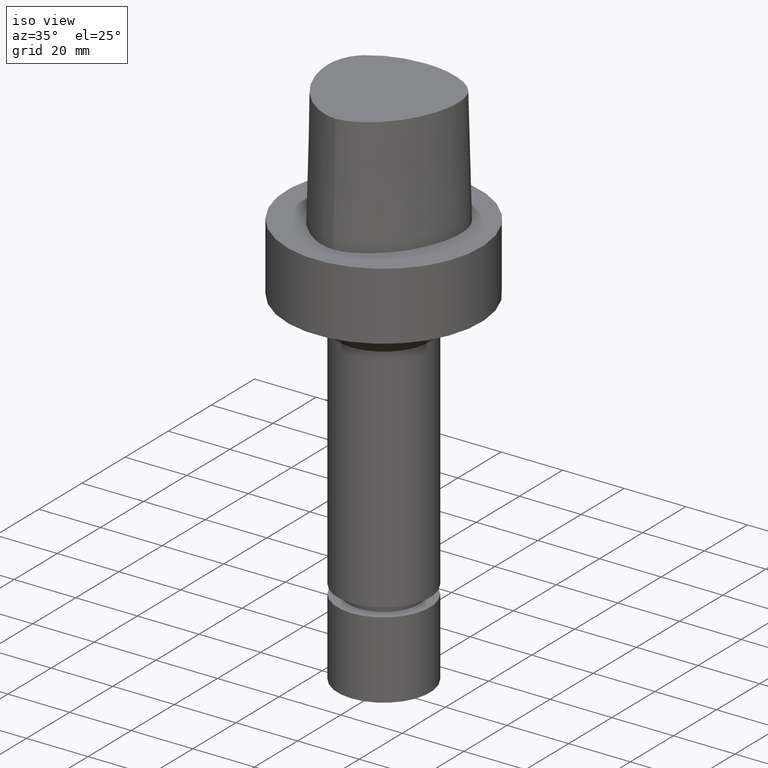
[diagram: clean part render]
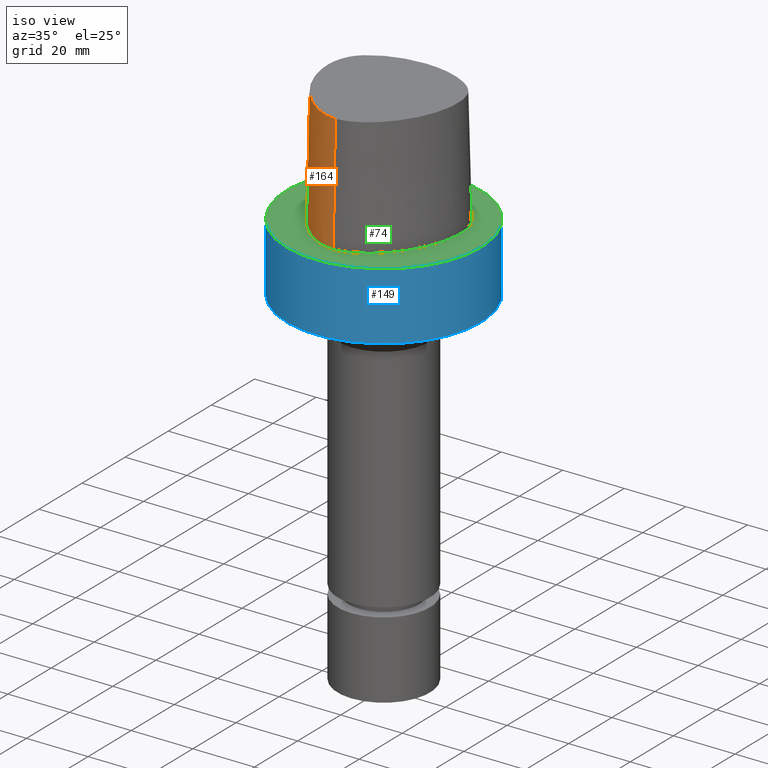
[diagram: same view with three faces highlighted in distinct colors, each labeled with its STEP entity id]
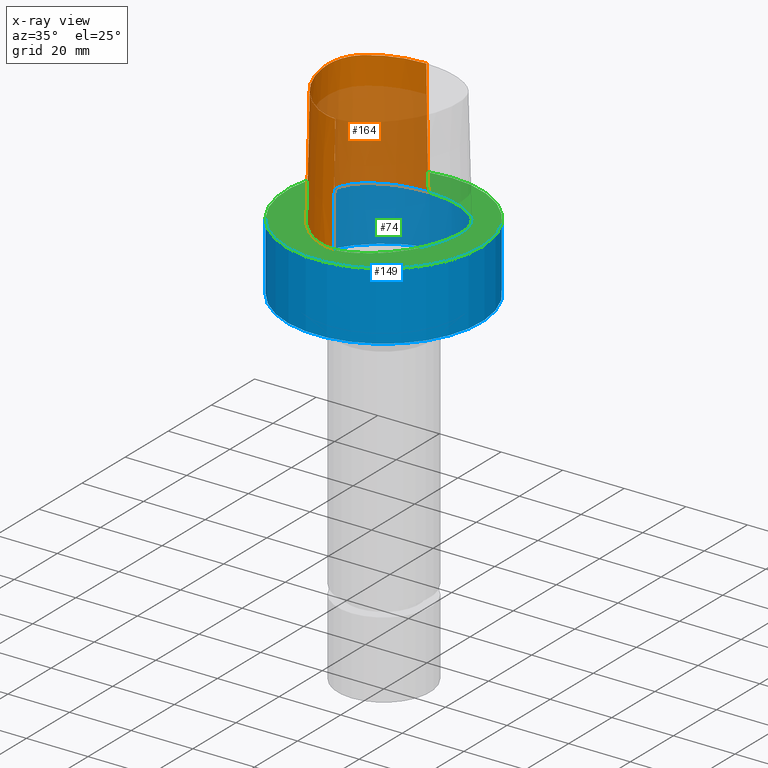
[diagram: x-ray of the same camera — body ghosted, the three highlighted faces saturated]
A machine part, iso view with three faces highlighted in distinct colors.
The next image is the same camera in x-ray (body ghosted, the three faces saturated) — at least one of them is partly hidden behind the body in this view.
Their STEP definitions:

[orange] entity #164 — the highlighted face is a freeform B-spline surface patch.
#109=EDGE_CURVE('Unnamed[1]',#223,#239,#248,.T.);
#146=EDGE_CURVE('Unnamed[1]',#239,#299,#300,.T.);
#153=EDGE_CURVE('Unnamed[1]',#299,#307,#310,.T.);
#164=ADVANCED_FACE('Unnamed[1]',(#325),#326,.T.);
#171=EDGE_CURVE('Unnamed[1]',#223,#307,#336,.T.);
#223=VERTEX_POINT('',#388);
#239=VERTEX_POINT('',#476);
#248=B_SPLINE_CURVE_WITH_KNOTS('',3,(#503,#504,#505,#506,#507,#508,#509,#510,#511,#512,#513,#514,#515,#516,#517,#518),.UNSPECIFIED.,.F.,.F.,(4,1,1,1,1,1,1,1,1,1,1,1,1,4),(0.0,0.447924670568964,0.9388024242536,1.50591409090711,2.07314340012323,2.72424957442464,3.2253501842849,3.80982102049476,4.34867996267067,4.85900173381144,5.37972031856977,6.03459825488646,6.61113557741484,6.61513393087395),.UNSPECIFIED.);
#299=VERTEX_POINT('',#582);
#300=LINE('',#583,#584);
#307=VERTEX_POINT('',#593);
#310=B_SPLINE_CURVE_WITH_KNOTS('',3,(#597,#598,#599,#600,#601,#602,#603,#604,#605,#606,#607,#608,#609,#610,#611,#612,#613,#614),.UNSPECIFIED.,.F.,.F.,(4,1,1,1,1,1,1,1,1,2,1,1,1,1,4),(-6.6151339308743,-6.20168806019465,-5.78824218951501,-5.37479631883537,-4.96135044815572,-4.13445870679644,-3.30756696543715,-2.89412109475751,-2.48067522407786,-2.06722935339822,-1.65378348271857,-1.24033761203893,-0.826891741359287,-0.413445870679644,0.0),.UNSPECIFIED.);
#325=FACE_OUTER_BOUND('',#649,.T.);
#326=B_SPLINE_SURFACE_WITH_KNOTS('',3,3,((#650,#651,#652,#653),(#654,#655,#656,#657),(#658,#659,#660,#661),(#662,#663,#664,#665),(#666,#667,#668,#669),(#670,#671,#672,#673),(#674,#675,#676,#677),(#678,#679,#680,#681),(#682,#683,#684,#685),(#686,#687,#688,#689),(#690,#691,#692,#693),(#694,#695,#696,#697),(#698,#699,#700,#701),(#702,#703,#704,#705),(#706,#707,#708,#709),(#710,#711,#712,#713),(#714,#715,#716,#717),(#718,#719,#720,#721)),.UNSPECIFIED.,.F.,.F.,.F.,(4,1,1,1,1,1,1,1,1,2,1,1,1,1,4),(4,4),(-6.6151339308743,-6.20168806019465,-5.78824218951501,-5.37479631883537,-4.96135044815572,-4.13445870679644,-3.30756696543715,-2.89412109475751,-2.48067522407786,-2.06722935339822,-1.65378348271857,-1.24033761203893,-0.826891741359287,-0.413445870679644,0.0),(-3.8,0.0),.UNSPECIFIED.);
#336=LINE('',#734,#735);
#388=CARTESIAN_POINT('',(-0.001218547003662,19.7276821925089,38.0));
#476=CARTESIAN_POINT('',(0.038736923393866,-22.5191997536361,38.0));
#503=CARTESIAN_POINT('',(-0.001218547003662,19.7276821925089,38.0));
#504=CARTESIAN_POINT('',(-1.49408492138443,19.6585333605309,38.0));
#505=CARTESIAN_POINT('',(-4.62297391420352,19.513604770166,38.0));
#506=CARTESIAN_POINT('',(-9.56160616752212,18.4291575730197,38.0));
#507=CARTESIAN_POINT('',(-14.5427684976927,16.2697452580488,38.0));
#508=CARTESIAN_POINT('',(-19.4315563551602,12.5302108980807,38.0));
#509=CARTESIAN_POINT('',(-21.306358833612,6.76352894547076,38.0));
#510=CARTESIAN_POINT('',(-21.0724946936277,0.957075236984038,38.0));
#511=CARTESIAN_POINT('',(-19.7876470880144,-4.34628503581652,38.0));
#512=CARTESIAN_POINT('',(-17.5396999600095,-9.33314444653089,38.0));
#513=CARTESIAN_POINT('',(-14.645447733857,-13.7185760345629,38.0));
#514=CARTESIAN_POINT('',(-10.7996726536643,-17.856257282137,38.0));
#515=CARTESIAN_POINT('',(-6.00479510196376,-21.2687382067675,38.0));
#516=CARTESIAN_POINT('',(-1.90747171908525,-22.5250621415864,38.0));
#517=CARTESIAN_POINT('',(0.025424107066464,-22.5192678176378,38.0));
#518=CARTESIAN_POINT('',(0.038736923394311,-22.519199753636,38.0));
#582=CARTESIAN_POINT('',(0.04359356758149,-23.4691235068931,7.78075697532443E-032));
#583=CARTESIAN_POINT('',(0.038736923393866,-22.5191997536361,38.0));
#584=VECTOR('',#850,38.0118715498723);
#593=CARTESIAN_POINT('',(-0.045171994691285,20.6766009553285,1.6755590516169E-031));
#597=CARTESIAN_POINT('',(0.04359356758149,-23.4691235068931,7.78075697532443E-032));
#598=CARTESIAN_POINT('',(-1.4714994713963,-23.4767895315797,2.46519032881566E-032));
#599=CARTESIAN_POINT('',(-4.43923476371401,-22.821149804767,-4.93038065763132E-032));
#600=CARTESIAN_POINT('',(-8.35043230079961,-20.8000751253325,-9.86076131526265E-032));
#601=CARTESIAN_POINT('',(-11.744900222602,-18.1556117874078,-1.97215226305253E-031));
#602=CARTESIAN_POINT('',(-15.6989602501314,-14.0406306929147,-1.97215226305253E-031));
#603=CARTESIAN_POINT('',(-19.5352875070682,-8.00624990770787,1.97215226305253E-031));
#604=CARTESIAN_POINT('',(-21.7205626190491,-1.16081708945282,0.0));
#605=CARTESIAN_POINT('',(-22.2486616783342,4.54965558738736,0.0));
#606=CARTESIAN_POINT('',(-21.6646421256468,9.00229539124618,0.0));
#607=CARTESIAN_POINT('',(-20.3945635471922,11.7780544971003,0.0));
#608=CARTESIAN_POINT('',(-18.5925528034471,14.1980602922581,0.0));
#609=CARTESIAN_POINT('',(-16.3226584122258,16.1777748720707,0.0));
#610=CARTESIAN_POINT('',(-12.5076407874579,18.2524201541303,9.86076131526265E-032));
#611=CARTESIAN_POINT('',(-8.46776192107786,19.679114377952,9.86076131526265E-032));
#612=CARTESIAN_POINT('',(-4.23043497193604,20.487781597334,1.97215226305253E-031));
#613=CARTESIAN_POINT('',(-1.42313094248379,20.6127745766442,1.10933564796705E-031));
#614=CARTESIAN_POINT('',(-0.045171994691285,20.6766009553285,1.6755590516169E-031));
#649=EDGE_LOOP('',(#873,#874,#875,#876));
#650=CARTESIAN_POINT('',(0.038736923393866,-22.5191997536361,38.0));
#651=CARTESIAN_POINT('',(0.04035580478973,-22.8358410047159,25.3333333333066));
#652=CARTESIAN_POINT('',(0.041974686185626,-23.1524822558133,12.6666666666934));
#653=CARTESIAN_POINT('',(0.04359356758149,-23.4691235068931,7.78075697532443E-032));
#654=CARTESIAN_POINT('',(-1.33786123484754,-22.5261650259856,38.0));
#655=CARTESIAN_POINT('',(-1.38240731367927,-22.8430399310626,25.3333333333066));
#656=CARTESIAN_POINT('',(-1.42695339249092,-23.1599147815484,12.6666666666934));
#657=CARTESIAN_POINT('',(-1.4714994713963,-23.4767895315797,2.46519032881566E-032));
#658=CARTESIAN_POINT('',(-4.08909358431842,-21.9268839879558,38.0));
#659=CARTESIAN_POINT('',(-4.20580731135515,-22.2249725500078,25.3333333333066));
#660=CARTESIAN_POINT('',(-4.32252104640446,-22.5230611651922,12.6666666666934));
#661=CARTESIAN_POINT('',(-4.43923476371401,-22.821149804767,-4.93038065763132E-032));
#662=CARTESIAN_POINT('',(-7.8333083619947,-19.9973514861616,38.0));
#663=CARTESIAN_POINT('',(-8.00568301809614,-20.2649260859405,25.3333333333066));
#664=CARTESIAN_POINT('',(-8.1780576640789,-20.532500564315,12.6666666666934));
#665=CARTESIAN_POINT('',(-8.35043230079961,-20.8000751253325,-9.86076131526265E-032));
#666=CARTESIAN_POINT('',(-11.1035071147626,-17.450554957873,38.0));
#667=CARTESIAN_POINT('',(-11.3173048160562,-17.6855739222454,25.3333333333066));
#668=CARTESIAN_POINT('',(-11.5311025116181,-17.9205928617968,12.6666666666934));
#669=CARTESIAN_POINT('',(-11.744900222602,-18.1556117874078,-1.97215226305253E-031));
#670=CARTESIAN_POINT('',(-14.9379535189057,-13.461132049697,38.0));
#671=CARTESIAN_POINT('',(-15.191622410671,-13.6542981711372,25.3333333333066));
#672=CARTESIAN_POINT('',(-15.4452913389853,-13.8474645327131,12.6666666666934));
#673=CARTESIAN_POINT('',(-15.6989602501314,-14.0406306929147,-1.97215226305253E-031));
#674=CARTESIAN_POINT('',(-18.6681263017223,-7.59391757463204,38.0));
#675=CARTESIAN_POINT('',(-18.9571800800711,-7.73136168081928,25.3333333333066));
#676=CARTESIAN_POINT('',(-19.2462337287194,-7.86880572399774,12.6666666666934));
#677=CARTESIAN_POINT('',(-19.5352875070682,-8.00624990770787,1.97215226305253E-031));
#678=CARTESIAN_POINT('',(-20.7857899858339,-0.952862819790525,38.0));
#679=CARTESIAN_POINT('',(-21.0973808305434,-1.02218087467418,25.3333333333066));
#680=CARTESIAN_POINT('',(-21.408971677436,-1.09149899580772,12.6666666666934));
#681=CARTESIAN_POINT('',(-21.7205626190491,-1.16081708945282,0.0));
#682=CARTESIAN_POINT('',(-21.2911760556836,4.5469215763113,38.0));
#683=CARTESIAN_POINT('',(-21.610337904926,4.54783292082248,25.3333333333066));
#684=CARTESIAN_POINT('',(-21.9294998290918,4.54874426225691,12.6666666666934));
#685=CARTESIAN_POINT('',(-22.2486616783342,4.54965558738736,0.0));
#686=CARTESIAN_POINT('',(-20.7345309521958,8.74909381391006,38.0));
#687=CARTESIAN_POINT('',(-21.0445680426217,8.83349432450556,25.3333333333066));
#688=CARTESIAN_POINT('',(-21.3546050933631,8.91789488065068,12.6666666666934));
#689=CARTESIAN_POINT('',(-21.6646421256468,9.00229539124618,0.0));
#690=CARTESIAN_POINT('',(-19.5531512296439,11.3174844040833,38.0));
#691=CARTESIAN_POINT('',(-19.8336219699984,11.4710077674213,25.3333333333066));
#692=CARTESIAN_POINT('',(-20.1140927680763,11.6245311337623,12.6666666666934));
#693=CARTESIAN_POINT('',(-20.3945635471922,11.7780544971003,0.0));
#694=CARTESIAN_POINT('',(-17.9100913688793,13.524027510437,38.0));
#695=CARTESIAN_POINT('',(-18.1375785458768,13.7487051053655,25.3333333333066));
#696=CARTESIAN_POINT('',(-18.365065665211,13.9733826973296,12.6666666666934));
#697=CARTESIAN_POINT('',(-18.5925528034471,14.1980602922581,0.0));
#698=CARTESIAN_POINT('',(-15.7996349656398,15.3762170634413,38.0));
#699=CARTESIAN_POINT('',(-15.9739761051783,15.6434029846179,25.3333333333066));
#700=CARTESIAN_POINT('',(-16.1483172726872,15.9105889315134,12.6666666666934));
#701=CARTESIAN_POINT('',(-16.3226584122258,16.1777748720707,0.0));
#702=CARTESIAN_POINT('',(-12.1175640002064,17.3825162484012,38.0));
#703=CARTESIAN_POINT('',(-12.2475895903055,17.6724842099619,25.3333333333066));
#704=CARTESIAN_POINT('',(-12.3776152070492,17.9624521925696,12.6666666666934));
#705=CARTESIAN_POINT('',(-12.5076407874579,18.2524201541303,9.86076131526265E-032));
#706=CARTESIAN_POINT('',(-8.21761151654222,18.7588585989994,38.0));
#707=CARTESIAN_POINT('',(-8.30099497910627,19.0656105427881,25.3333333333066));
#708=CARTESIAN_POINT('',(-8.38437843913309,19.3723624535439,12.6666666666934));
#709=CARTESIAN_POINT('',(-8.46776192107786,19.679114377952,9.86076131526265E-032));
#710=CARTESIAN_POINT('',(-4.13466093881225,19.5396850837055,38.0));
#711=CARTESIAN_POINT('',(-4.16658562115465,19.8557172636973,25.3333333333066));
#712=CARTESIAN_POINT('',(-4.19851029939059,20.1717494367229,12.6666666666934));
#713=CARTESIAN_POINT('',(-4.23043497193604,20.487781597334,1.97215226305253E-031));
#714=CARTESIAN_POINT('',(-1.37917220403684,19.6638560588908,38.0));
#715=CARTESIAN_POINT('',(-1.39382511685176,19.98016223565,25.3333333333066));
#716=CARTESIAN_POINT('',(-1.40847802945569,20.296468399885,12.6666666666934));
#717=CARTESIAN_POINT('',(-1.42313094248379,20.6127745766442,1.10933564796705E-031));
#718=CARTESIAN_POINT('',(-0.001218547003662,19.7276821925089,38.0));
#719=CARTESIAN_POINT('',(-0.015869696232855,20.043988446791,25.3333333333066));
#720=CARTESIAN_POINT('',(-0.030520845462092,20.3602947010464,12.6666666666934));
#721=CARTESIAN_POINT('',(-0.045171994691285,20.6766009553285,1.6755590516169E-031));
#734=CARTESIAN_POINT('',(-0.001218547003662,19.7276821925089,38.0));
#735=VECTOR('',#886,38.0118715498723);
#850=DIRECTION('',(0.000127766510556,-0.024990186342461,-0.999687688361864));
#873=ORIENTED_EDGE('',*,*,#153,.F.);
#874=ORIENTED_EDGE('',*,*,#146,.F.);
#875=ORIENTED_EDGE('',*,*,#109,.F.);
#876=ORIENTED_EDGE('',*,*,#171,.T.);
#886=DIRECTION('',(-0.001156308434589,0.02496374748543,-0.999687688361864));

[blue] entity #149 — the highlighted cylindrical surface (bore or boss wall) has radius 31.5 mm, axis along (0, 0, -1).
#95=EDGE_CURVE('Unnamed[1]',#227,#227,#228,.T.);
#105=EDGE_CURVE('Unnamed[1]',#242,#242,#243,.T.);
#149=ADVANCED_FACE('Unnamed[1]',(#303,#304),#305,.T.);
#227=VERTEX_POINT('',#394);
#228=CIRCLE('',#395,31.5);
#242=VERTEX_POINT('',#495);
#243=CIRCLE('',#496,31.5);
#303=FACE_BOUND('',#588,.T.);
#304=FACE_BOUND('',#589,.T.);
#305=CYLINDRICAL_SURFACE('',#590,31.5);
#394=CARTESIAN_POINT('',(1.34711147906212E-015,31.5,-22.0000000000006));
#395=AXIS2_PLACEMENT_3D('',#780,#781,#782);
#495=CARTESIAN_POINT('',(-3.88267476788467E-031,31.5,3.85763741731416E-015));
#496=AXIS2_PLACEMENT_3D('',#794,#795,#796);
#588=EDGE_LOOP('',(#852));
#589=EDGE_LOOP('',(#853));
#590=AXIS2_PLACEMENT_3D('',#854,#855,#856);
#780=CARTESIAN_POINT('',(1.34711147906212E-015,2.69422295812425E-015,-22.0000000000006));
#781=DIRECTION('',(6.12323399573677E-017,1.22464679914735E-016,-1.0));
#782=DIRECTION('',(-1.23259516440783E-032,1.0,1.22464679914735E-016));
#794=CARTESIAN_POINT('',(0.0,0.0,0.0));
#795=DIRECTION('',(6.12323399573677E-017,1.22464679914735E-016,-1.0));
#796=DIRECTION('',(-1.23259516440783E-032,1.0,1.22464679914735E-016));
#852=ORIENTED_EDGE('',*,*,#95,.F.);
#853=ORIENTED_EDGE('',*,*,#105,.T.);
#854=CARTESIAN_POINT('',(6.73555739531062E-016,1.34711147906212E-015,-11.0000000000003));
#855=DIRECTION('',(6.12323399573677E-017,1.22464679914735E-016,-1.0));
#856=DIRECTION('',(-1.23259516440783E-032,1.0,1.22464679914735E-016));

[green] entity #74 — the highlighted planar face has unit normal (-0, -0, 1).
#74=ADVANCED_FACE('Unnamed[1]',(#193,#194),#195,.T.);
#105=EDGE_CURVE('Unnamed[1]',#242,#242,#243,.T.);
#151=EDGE_CURVE('Unnamed[1]',#307,#224,#308,.T.);
#153=EDGE_CURVE('Unnamed[1]',#299,#307,#310,.T.);
#158=EDGE_CURVE('Unnamed[1]',#224,#299,#317,.T.);
#193=FACE_BOUND('',#351,.T.);
#194=FACE_OUTER_BOUND('',#352,.T.);
#195=PLANE('',#353);
#224=VERTEX_POINT('',#389);
#242=VERTEX_POINT('',#495);
#243=CIRCLE('',#496,31.5);
#299=VERTEX_POINT('',#582);
#307=VERTEX_POINT('',#593);
#308=CIRCLE('',#594,0.949936168436318);
#310=B_SPLINE_CURVE_WITH_KNOTS('',3,(#597,#598,#599,#600,#601,#602,#603,#604,#605,#606,#607,#608,#609,#610,#611,#612,#613,#614),.UNSPECIFIED.,.F.,.F.,(4,1,1,1,1,1,1,1,1,2,1,1,1,1,4),(-6.6151339308743,-6.20168806019465,-5.78824218951501,-5.37479631883537,-4.96135044815572,-4.13445870679644,-3.30756696543715,-2.89412109475751,-2.48067522407786,-2.06722935339822,-1.65378348271857,-1.24033761203893,-0.826891741359287,-0.413445870679644,0.0),.UNSPECIFIED.);
#317=B_SPLINE_CURVE_WITH_KNOTS('',3,(#623,#624,#625,#626,#627,#628,#629,#630,#631,#632,#633,#634,#635,#636,#637,#638,#639),.UNSPECIFIED.,.F.,.F.,(4,1,1,1,1,1,1,1,1,1,1,1,1,1,4),(-13.2302678617486,-12.816821991069,-12.4033761203893,-11.9899302497097,-11.57648437903,-11.1630385083504,-10.9563155730106,-10.7495926376707,-10.3361467669911,-9.92270089631145,-9.09580915495216,-8.26891741359287,-7.44202567223358,-7.02857980155394,-6.6151339308743),.UNSPECIFIED.);
#351=EDGE_LOOP('',(#738,#739,#740));
#352=EDGE_LOOP('',(#741));
#353=AXIS2_PLACEMENT_3D('',#742,#743,#744);
#389=CARTESIAN_POINT('',(0.044682985379347,20.6765087343109,1.61778115328528E-031));
#495=CARTESIAN_POINT('',(-3.88267476788467E-031,31.5,3.85763741731416E-015));
#496=AXIS2_PLACEMENT_3D('',#794,#795,#796);
#582=CARTESIAN_POINT('',(0.04359356758149,-23.4691235068931,7.78075697532443E-032));
#593=CARTESIAN_POINT('',(-0.045171994691285,20.6766009553285,1.6755590516169E-031));
#594=AXIS2_PLACEMENT_3D('',#857,#858,#859);
#597=CARTESIAN_POINT('',(0.04359356758149,-23.4691235068931,7.78075697532443E-032));
#598=CARTESIAN_POINT('',(-1.4714994713963,-23.4767895315797,2.46519032881566E-032));
#599=CARTESIAN_POINT('',(-4.43923476371401,-22.821149804767,-4.93038065763132E-032));
#600=CARTESIAN_POINT('',(-8.35043230079961,-20.8000751253325,-9.86076131526265E-032));
#601=CARTESIAN_POINT('',(-11.744900222602,-18.1556117874078,-1.97215226305253E-031));
#602=CARTESIAN_POINT('',(-15.6989602501314,-14.0406306929147,-1.97215226305253E-031));
#603=CARTESIAN_POINT('',(-19.5352875070682,-8.00624990770787,1.97215226305253E-031));
#604=CARTESIAN_POINT('',(-21.7205626190491,-1.16081708945282,0.0));
#605=CARTESIAN_POINT('',(-22.2486616783342,4.54965558738736,0.0));
#606=CARTESIAN_POINT('',(-21.6646421256468,9.00229539124618,0.0));
#607=CARTESIAN_POINT('',(-20.3945635471922,11.7780544971003,0.0));
#608=CARTESIAN_POINT('',(-18.5925528034471,14.1980602922581,0.0));
#609=CARTESIAN_POINT('',(-16.3226584122258,16.1777748720707,0.0));
#610=CARTESIAN_POINT('',(-12.5076407874579,18.2524201541303,9.86076131526265E-032));
#611=CARTESIAN_POINT('',(-8.46776192107786,19.679114377952,9.86076131526265E-032));
#612=CARTESIAN_POINT('',(-4.23043497193604,20.487781597334,1.97215226305253E-031));
#613=CARTESIAN_POINT('',(-1.42313094248379,20.6127745766442,1.10933564796705E-031));
#614=CARTESIAN_POINT('',(-0.045171994691285,20.6766009553285,1.6755590516169E-031));
#623=CARTESIAN_POINT('',(0.044682985379347,20.6765087343109,1.61778115328528E-031));
#624=CARTESIAN_POINT('',(1.42379272427753,20.6097915814392,8.62816615085482E-032));
#625=CARTESIAN_POINT('',(4.2230955003445,20.4837538303966,1.4791141972894E-031));
#626=CARTESIAN_POINT('',(8.47220762821777,19.6890432607088,9.86076131526265E-032));
#627=CARTESIAN_POINT('',(12.5141247708253,18.2434968480404,0.0));
#628=CARTESIAN_POINT('',(16.3038624872874,16.1734192182143,1.97215226305253E-031));
#629=CARTESIAN_POINT('',(19.1446913988473,13.7036723639434,-1.97215226305253E-031));
#630=CARTESIAN_POINT('',(20.7319894342149,11.1014620996188,0.0));
#631=CARTESIAN_POINT('',(21.7831756505763,8.28099229708081,-1.97215226305253E-031));
#632=CARTESIAN_POINT('',(22.2258240701438,4.60865440596506,0.0));
#633=CARTESIAN_POINT('',(21.7436130080666,-1.11326526354485,0.0));
#634=CARTESIAN_POINT('',(19.5519487660502,-7.95432366164584,0.0));
#635=CARTESIAN_POINT('',(14.9574167123838,-15.2089785567293,0.0));
#636=CARTESIAN_POINT('',(9.66840283021945,-20.0827414369705,-9.86076131526265E-032));
#637=CARTESIAN_POINT('',(4.51628650521788,-22.7946374572188,-9.86076131526265E-032));
#638=CARTESIAN_POINT('',(1.55867251738073,-23.4612972770043,-1.23259516440783E-032));
#639=CARTESIAN_POINT('',(0.04359356758149,-23.4691235068931,7.78075697532443E-032));
#738=ORIENTED_EDGE('',*,*,#158,.T.);
#739=ORIENTED_EDGE('',*,*,#153,.T.);
#740=ORIENTED_EDGE('',*,*,#151,.T.);
#741=ORIENTED_EDGE('',*,*,#105,.F.);
#742=CARTESIAN_POINT('',(-1.94133738394233E-031,15.75,1.92881870865708E-015));
#743=DIRECTION('',(-6.12323399573677E-017,-1.22464679914735E-016,1.0));
#744=DIRECTION('',(1.23259516440783E-032,-1.0,-1.22464679914735E-016));
#794=CARTESIAN_POINT('',(0.0,0.0,0.0));
#795=DIRECTION('',(6.12323399573677E-017,1.22464679914735E-016,-1.0));
#796=DIRECTION('',(-1.23259516440783E-032,1.0,1.22464679914735E-016));
#857=CARTESIAN_POINT('',(-0.001218547003662,19.7276821925089,1.97178046083078E-015));
#858=DIRECTION('',(6.12323399573677E-017,1.22464679914735E-016,-1.0));
#859=DIRECTION('',(-0.046269895968506,0.998928974816059,1.19500303158668E-016));